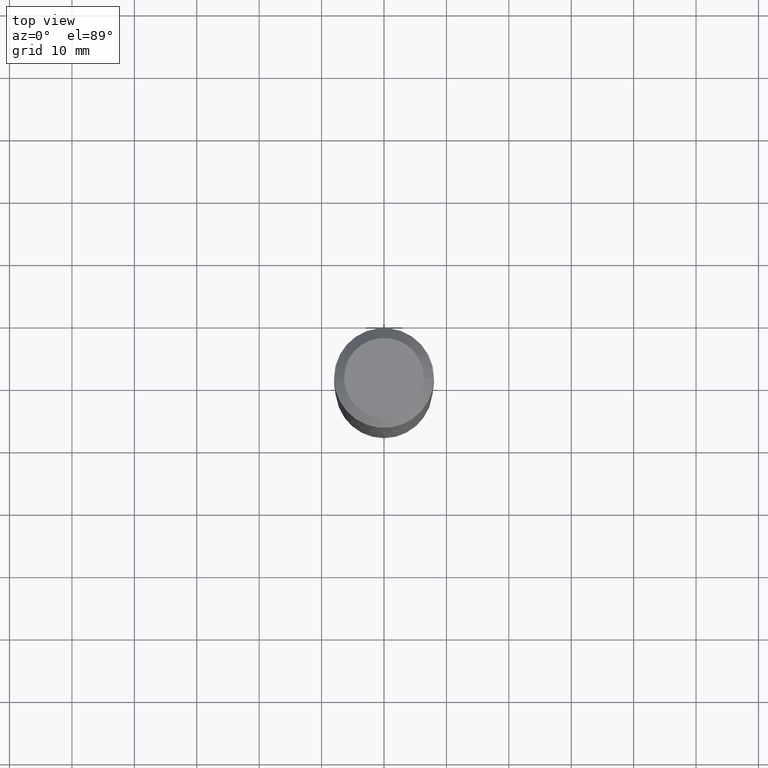
[diagram: clean part render]
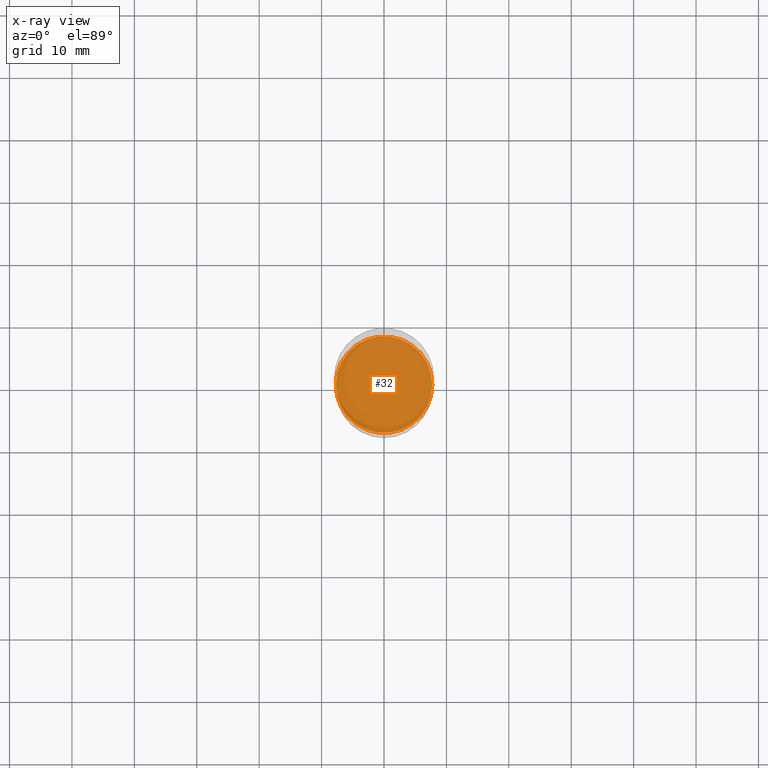
[diagram: x-ray — body ghosted, one internal face saturated and labeled with its STEP entity id]
A machine part, top view, then the same camera in x-ray: the body is ghosted and one INTERNAL B-rep face — a face not visible from any outside direction — is saturated and labeled: STEP entity #32.
In plain terms, the highlighted planar face has unit normal (-0, 0, 1).
Its self-contained STEP definition (entity closure, byte-faithful):
#20 = DIRECTION ( 'NONE',  ( -2.445468806185136597E-29, 3.491481338843145583E-15, 1.000000000000000000 ) ) ;
#32 = ADVANCED_FACE ( 'NONE', ( #36 ), #267, .F. ) ;
#36 = FACE_OUTER_BOUND ( 'NONE', #458, .T. ) ;
#91 = DIRECTION ( 'NONE',  ( 1.000000000000000000, -6.982962677686269866E-15, 0.000000000000000000 ) ) ;
#95 = EDGE_CURVE ( 'NONE', #271, #423, #326, .T. ) ;
#139 = AXIS2_PLACEMENT_3D ( 'NONE', #375, #300, #448 ) ;
#146 = CARTESIAN_POINT ( 'NONE',  ( 0.3045999999999999819, -1.113049336009805554E-14, -2.578699999999999548 ) ) ;
#151 = DIRECTION ( 'NONE',  ( -2.438088387897960049E-29, 3.491481338843145188E-15, 1.000000000000000000 ) ) ;
#184 = DIRECTION ( 'NONE',  ( 1.000000000000000000, -6.982962677686265922E-15, 4.876176775795935793E-29 ) ) ;
#205 = CARTESIAN_POINT ( 'NONE',  ( -0.3045999999999999819, -6.836520528175441255E-15, -2.578699999999999548 ) ) ;
#222 = CIRCLE ( 'NONE', #332, 0.3045999999999999819 ) ;
#265 = ORIENTED_EDGE ( 'NONE', *, *, #405, .F. ) ;
#267 = PLANE ( 'NONE',  #366 ) ;
#271 = VERTEX_POINT ( 'NONE', #146 ) ;
#300 = DIRECTION ( 'NONE',  ( -2.445468806185136597E-29, 3.491481338843145583E-15, 1.000000000000000000 ) ) ;
#308 = CARTESIAN_POINT ( 'NONE',  ( 6.306130410509609656E-29, -9.003482928474816704E-15, -2.578699999999999548 ) ) ;
#326 = CIRCLE ( 'NONE', #139, 0.3045999999999999819 ) ;
#327 = CARTESIAN_POINT ( 'NONE',  ( 6.306130410509609656E-29, -9.003482928474816704E-15, -2.578699999999999548 ) ) ;
#332 = AXIS2_PLACEMENT_3D ( 'NONE', #327, #20, #91 ) ;
#366 = AXIS2_PLACEMENT_3D ( 'NONE', #308, #151, #184 ) ;
#375 = CARTESIAN_POINT ( 'NONE',  ( 6.306130410509609656E-29, -9.003482928474816704E-15, -2.578699999999999548 ) ) ;
#394 = ORIENTED_EDGE ( 'NONE', *, *, #95, .F. ) ;
#405 = EDGE_CURVE ( 'NONE', #423, #271, #222, .T. ) ;
#423 = VERTEX_POINT ( 'NONE', #205 ) ;
#448 = DIRECTION ( 'NONE',  ( 1.000000000000000000, -6.982962677686269866E-15, 0.000000000000000000 ) ) ;
#458 = EDGE_LOOP ( 'NONE', ( #394, #265 ) ) ;